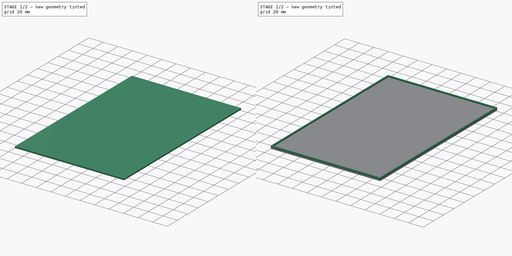
[diagram: build sequence overview — one tinted view per stage of 2, left to right]
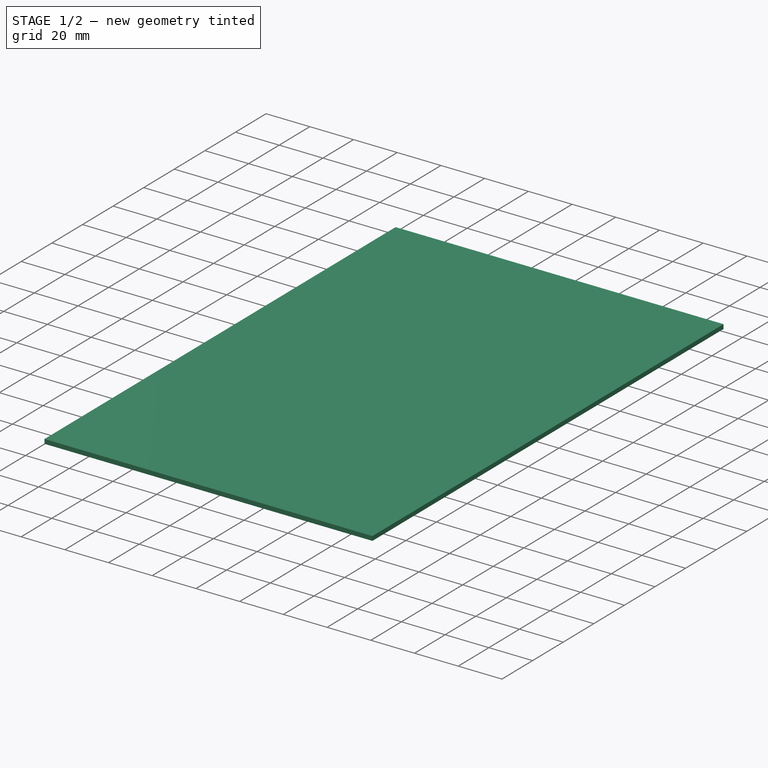
[diagram: stage 1 of 2 — iso view after this stage's code; geometry added in this stage tinted green]
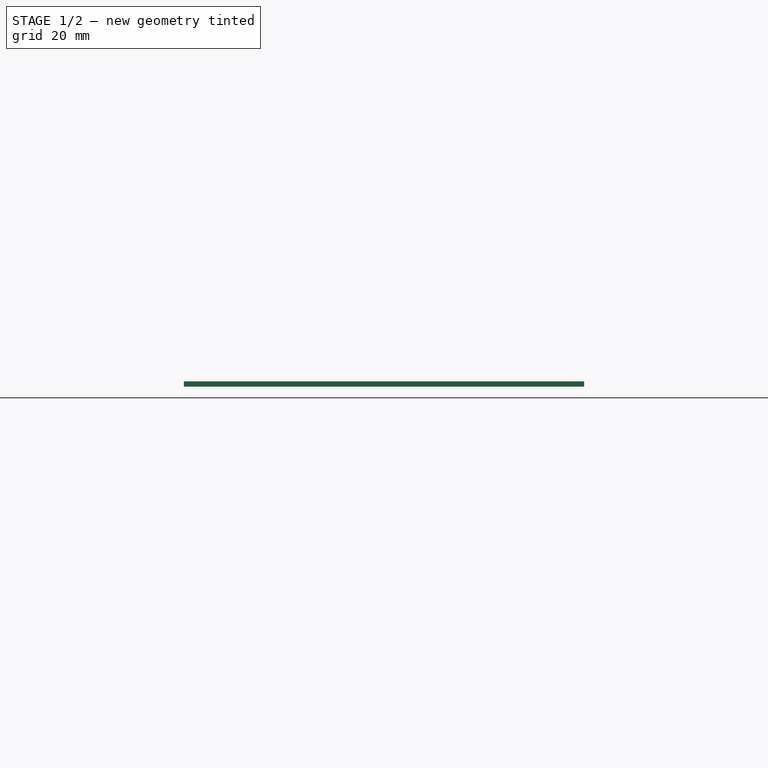
[diagram: stage 1 of 2 — front view after this stage's code; geometry added in this stage tinted green]
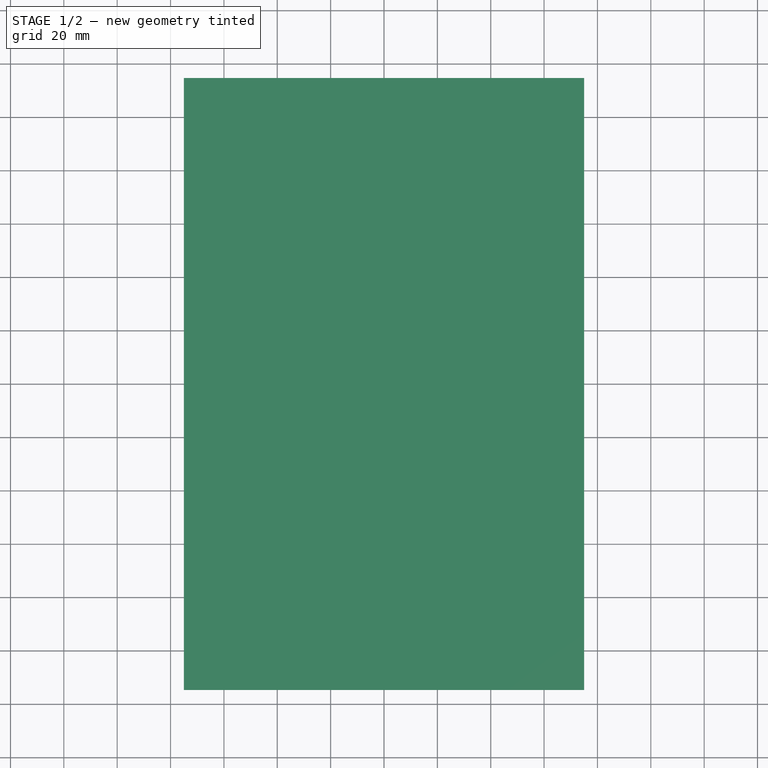
[diagram: stage 1 of 2 — top view after this stage's code; geometry added in this stage tinted green]
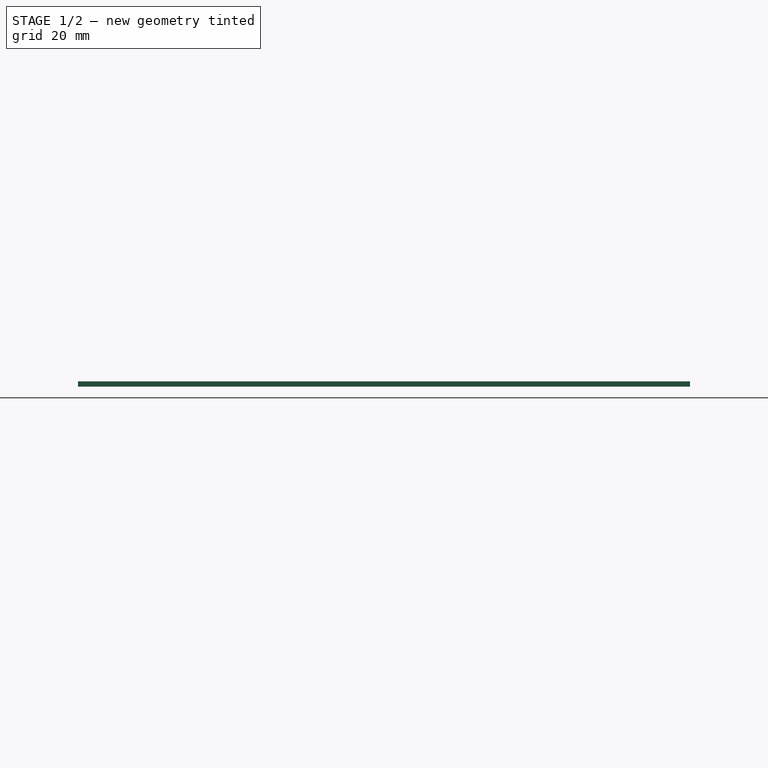
[diagram: stage 1 of 2 — right view after this stage's code; geometry added in this stage tinted green]
FCSTD DOCUMENT  (FreeCAD 0.20R29603 (Git))
Label: Bottom_Lid_Cloud_Chamber
License: All rights reserved
LicenseURL: http://en.wikipedia.org/wiki/All_rights_reserved
objects: Sketcher::SketchObject×2, PartDesign::Pad×2, PartDesign::Body×1
note: 7 computed .brp shape members not serialized (recipe doc carries the construction recipe); baked Part::Feature solids carry a one-line shape summary decoded from their .brp

FEATURE [Sketcher::SketchObject] Sketch
  FullyConstrained = false
  MapMode = 5
  Support = -> [XY_Plane]
  sketch-geometry (14):
    g0: LineSegment StartX=-73.025 StartY=112.713 StartZ=0 EndX=73.025 EndY=112.713 EndZ=0
    g1: LineSegment StartX=73.025 StartY=112.713 StartZ=0 EndX=73.025 EndY=-112.713 EndZ=0
    g2: LineSegment StartX=73.025 StartY=-112.713 StartZ=0 EndX=-73.025 EndY=-112.713 EndZ=0
    g3: LineSegment StartX=-73.025 StartY=-112.713 StartZ=0 EndX=-73.025 EndY=112.713 EndZ=0
    g4: LineSegment StartX=-75.025 StartY=114.713 StartZ=0 EndX=75.025 EndY=114.713 EndZ=0
    g5: LineSegment StartX=75.025 StartY=114.713 StartZ=0 EndX=75.025 EndY=-114.712 EndZ=0
    g6: LineSegment StartX=75.025 StartY=-114.712 StartZ=0 EndX=-75.025 EndY=-114.712 EndZ=0
    g7: LineSegment StartX=-75.025 StartY=-114.712 StartZ=0 EndX=-75.025 EndY=114.713 EndZ=0
    g8: LineSegment StartX=-75.025 StartY=114.713 StartZ=0 EndX=-73.025 EndY=114.713 EndZ=0
    g9: LineSegment StartX=-75.025 StartY=112.713 StartZ=0 EndX=-75.025 EndY=114.713 EndZ=0
    g10: LineSegment StartX=0 StartY=-112.712 StartZ=0 EndX=0 EndY=-114.712 EndZ=0
    g11: LineSegment StartX=73.025 StartY=0 StartZ=0 EndX=75.025 EndY=0 EndZ=0
    g12: LineSegment StartX=0 StartY=114.712 StartZ=0 EndX=0 EndY=112.712 EndZ=0
    g13: LineSegment StartX=-75.025 StartY=0 StartZ=0 EndX=-73.025 EndY=0 EndZ=0
  constraints (42):
    c: Coincident(g0,g1)
    c: Coincident(g1,g2)
    c: Coincident(g2,g3)
    c: Coincident(g3,g0)
    c: Horizontal(g2)
    c: Vertical(g3)
    c: Symmetric(g0,g0,g-2)
    c: Symmetric(g1,g0,g-1)
    c: DistanceY(g1,g1) = 225.425
    c: DistanceX(g0,g0) = 146.05
    c: Coincident(g4,g5)
    c: Coincident(g5,g6)
    c: Coincident(g6,g7)
    c: Coincident(g7,g4)
    c: Horizontal(g4)
    c: Horizontal(g6)
    c: Vertical(g5)
    c: Vertical(g7)
    c: Coincident(g9,g8)
    c: Horizontal(g8)
    c: Vertical(g9)
    c: Coincident(g8,g4)
    c: PointOnObject(g10,g2)
    c: PointOnObject(g10,g6)
    c: PointOnObject(g11,g1)
    c: PointOnObject(g11,g5)
    c: PointOnObject(g12,g4)
    c: PointOnObject(g12,g0)
    c: PointOnObject(g13,g7)
    c: PointOnObject(g13,g3)
    c: Horizontal(g13)
    c: Horizontal(g11)
    c: Horizontal(g11,g-1)
    c: Horizontal(g13,g-1)
    c: Equal(g13,g11)
    c: Vertical(g12)
    c: Vertical(g10)
    c: Vertical(g10,g-1)
    c: Vertical(g12,g10)
    c: Equal(g12,g10)
    c: Equal(g13,g10)
    c: DistanceY(g12,g12) = 2
FEATURE [PartDesign::Pad] Pad  label="Bottom"
  Direction = (0,0,1)
  Length = 2
  Length2 = 10
  Profile = -> Sketch
  ReferenceAxis = -> Sketch [N_Axis]
  Type = 0
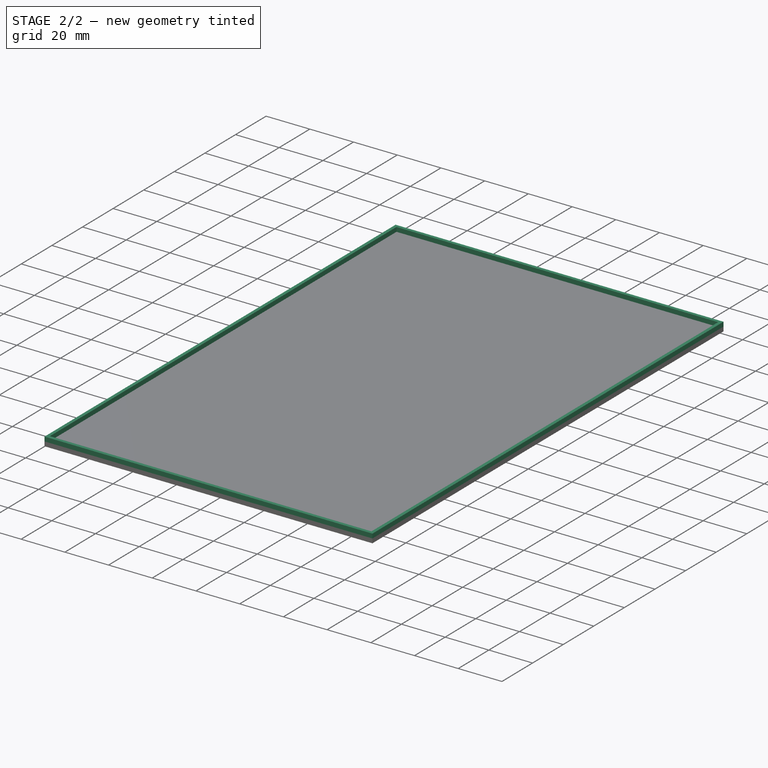
[diagram: stage 2 of 2 — iso view after this stage's code; geometry added in this stage tinted green]
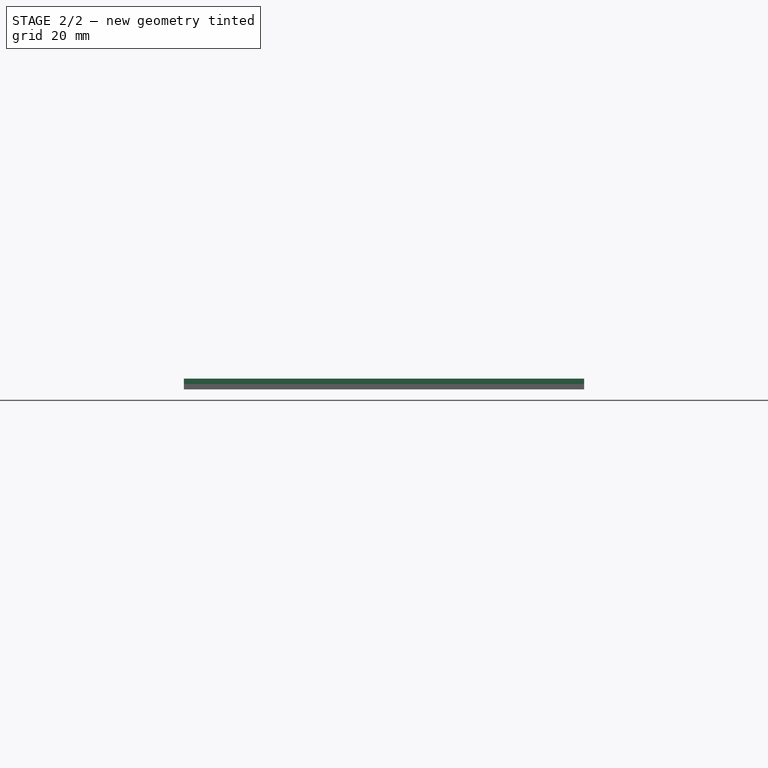
[diagram: stage 2 of 2 — front view after this stage's code; geometry added in this stage tinted green]
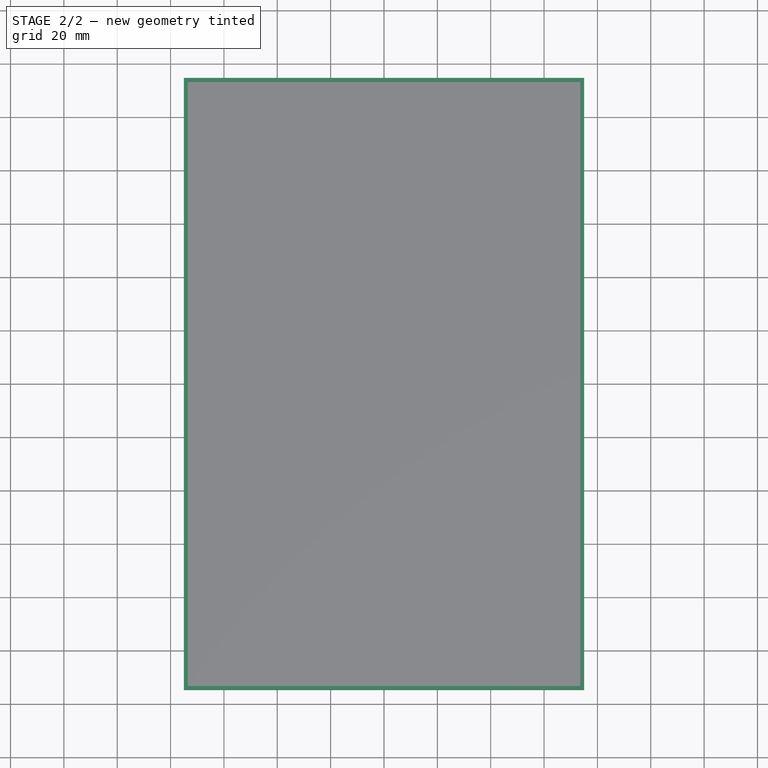
[diagram: stage 2 of 2 — top view after this stage's code; geometry added in this stage tinted green]
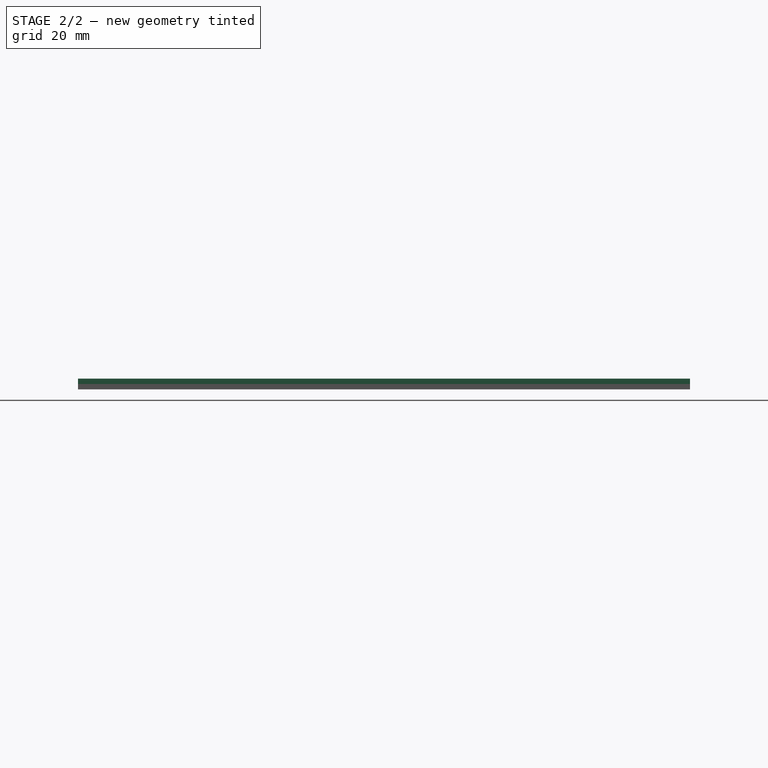
[diagram: stage 2 of 2 — right view after this stage's code; geometry added in this stage tinted green]
FEATURE [Sketcher::SketchObject] Sketch001
  ExternalGeometry = -> [Pad]
  FullyConstrained = false
  MapMode = 5
  Placement = pos=(0,0,2) rot=(0,0,1;0rad)
  Support = -> [Pad]
  sketch-geometry (22):
    g0: LineSegment StartX=-73.0798 StartY=112.767 StartZ=0 EndX=73.0798 EndY=112.767 EndZ=0
    g1: LineSegment StartX=73.0798 StartY=112.767 StartZ=0 EndX=73.0798 EndY=-112.767 EndZ=0
    g2: LineSegment StartX=73.0798 StartY=-112.767 StartZ=0 EndX=-73.0798 EndY=-112.767 EndZ=0
    g3: LineSegment StartX=-73.0798 StartY=-112.767 StartZ=0 EndX=-73.0798 EndY=112.767 EndZ=0
    g4: LineSegment StartX=-75.025 StartY=114.713 StartZ=0 EndX=75.025 EndY=114.713 EndZ=0
    g5: LineSegment StartX=75.025 StartY=114.713 StartZ=0 EndX=75.025 EndY=-114.713 EndZ=0
    g6: LineSegment StartX=75.025 StartY=-114.713 StartZ=0 EndX=-75.025 EndY=-114.713 EndZ=0
    g7: LineSegment StartX=-75.025 StartY=-114.713 StartZ=0 EndX=-75.025 EndY=114.713 EndZ=0
    g8: LineSegment StartX=-75.025 StartY=114.713 StartZ=0 EndX=-73.025 EndY=114.713 EndZ=0
    g9: LineSegment StartX=-75.025 StartY=112.713 StartZ=0 EndX=-75.025 EndY=114.713 EndZ=0
    g10: LineSegment StartX=0 StartY=-112.767 StartZ=0 EndX=0 EndY=-114.713 EndZ=0
    g11: LineSegment StartX=73.0798 StartY=0 StartZ=0 EndX=75.025 EndY=0 EndZ=0
    g12: LineSegment StartX=0 StartY=114.713 StartZ=0 EndX=0 EndY=112.767 EndZ=0
    g13: LineSegment StartX=-75.025 StartY=0 StartZ=0 EndX=-73.0798 EndY=0 EndZ=0
    g14: LineSegment StartX=-73.5798 StartY=113.267 StartZ=0 EndX=73.5798 EndY=113.267 EndZ=0
    g15: LineSegment StartX=73.5798 StartY=113.267 StartZ=0 EndX=73.5798 EndY=-113.267 EndZ=0
    g16: LineSegment StartX=73.5798 StartY=-113.267 StartZ=0 EndX=-73.5798 EndY=-113.267 EndZ=0
    g17: LineSegment StartX=-73.5798 StartY=-113.267 StartZ=0 EndX=-73.5798 EndY=113.267 EndZ=0
    g18: LineSegment StartX=1.29795 StartY=113.267 StartZ=0 EndX=1.29795 EndY=112.767 EndZ=0
    g19: LineSegment StartX=73.5798 StartY=92.5464 StartZ=0 EndX=73.0798 EndY=92.5464 EndZ=0
    g20: LineSegment StartX=-73.5798 StartY=110.827 StartZ=0 EndX=-73.0798 EndY=110.827 EndZ=0
    g21: LineSegment StartX=1.4115 StartY=-112.767 StartZ=0 EndX=1.4115 EndY=-113.267 EndZ=0
  constraints (68):
    c: Coincident(g0,g1)
    c: Coincident(g1,g2)
    c: Coincident(g2,g3)
    c: Coincident(g3,g0)
    c: Horizontal(g2)
    c: Vertical(g3)
    c: Symmetric(g0,g0,g-2)
    c: Symmetric(g1,g0,g-1)
    c: DistanceY(g1,g1) = 225.535
    c: DistanceX(g0,g0) = 146.16
    c: Coincident(g4,g5)
    c: Coincident(g5,g6)
    c: Coincident(g6,g7)
    c: Coincident(g7,g4)
    c: Horizontal(g4)
    c: Horizontal(g6)
    c: Vertical(g5)
    c: Vertical(g7)
    c: Coincident(g9,g8)
    c: Horizontal(g8)
    c: Vertical(g9)
    c: Coincident(g8,g4)
    c: PointOnObject(g10,g2)
    c: PointOnObject(g10,g6)
    c: PointOnObject(g11,g1)
    c: PointOnObject(g11,g5)
    c: PointOnObject(g12,g4)
    c: PointOnObject(g12,g0)
    c: PointOnObject(g13,g7)
    c: PointOnObject(g13,g3)
    c: Horizontal(g13)
    c: Horizontal(g11)
    c: Horizontal(g11,g-1)
    c: Horizontal(g13,g-1)
    c: Equal(g13,g11)
    c: Vertical(g12)
    c: Vertical(g10)
    c: Vertical(g10,g-1)
    c: Vertical(g12,g10)
    c: Equal(g12,g10)
    c: Equal(g13,g10)
    c: DistanceY(g12,g12) = 1.94516
    c: Coincident(g14,g15)
    c: Coincident(g15,g16)
    c: Coincident(g16,g17)
    c: Coincident(g17,g14)
    c: Horizontal(g14)
    c: Horizontal(g16)
    c: Vertical(g15)
    c: Vertical(g17)
    c: PointOnObject(g18,g14)
    c: PointOnObject(g18,g0)
    c: Vertical(g18)
    c: PointOnObject(g19,g15)
    c: PointOnObject(g19,g1)
    c: Horizontal(g19)
    c: PointOnObject(g20,g17)
    c: PointOnObject(g20,g3)
    c: Horizontal(g20)
    c: PointOnObject(g21,g2)
    c: PointOnObject(g21,g16)
    c: Vertical(g21)
    c: Equal(g21,g20)
    c: Equal(g20,g18)
    c: Equal(g18,g19)
    c: Coincident(g4,g-4)
    c: DistanceY(g18,g18) = 0.5
    c: Block(g14)
FEATURE [PartDesign::Pad] Pad001
  BaseFeature = -> Pad
  Direction = (0,0,1)
  Length = 2
  Length2 = 10
  Profile = -> Sketch001
  ReferenceAxis = -> Sketch001 [N_Axis]
  Type = 0
FEATURE [PartDesign::Body] Body
  Group = -> [Sketch,Pad,Sketch001,Pad001]
  Origin = -> Origin
  Tip = -> Pad001
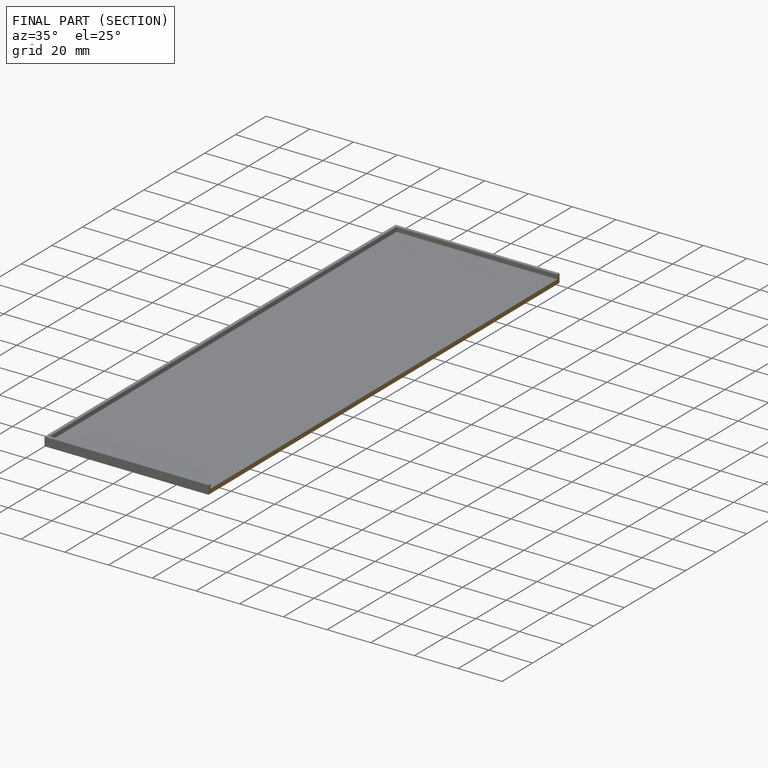
[diagram: finished part — half-section view (interior)]
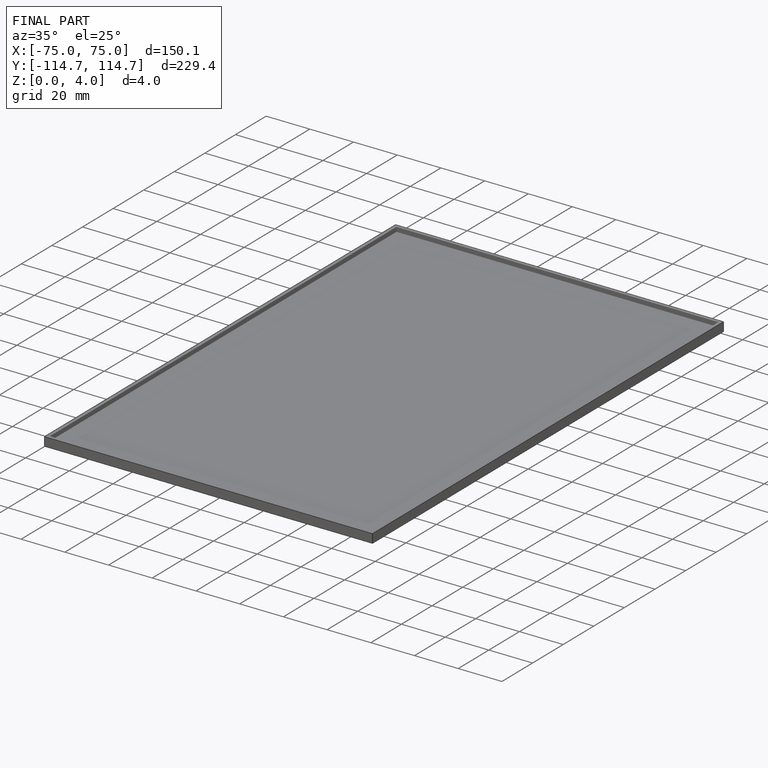
[diagram: finished part — iso view with bounding-box wireframe]
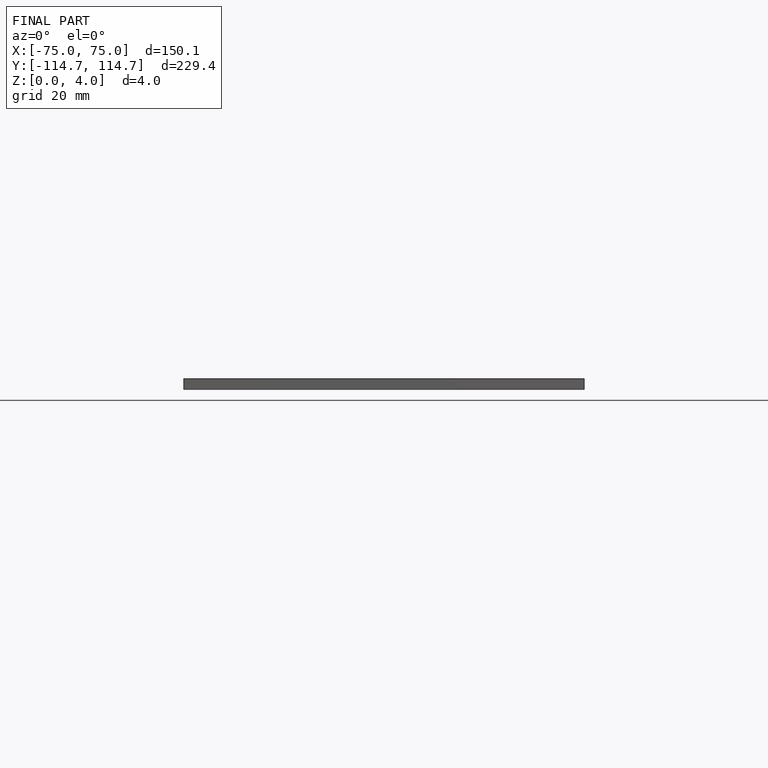
[diagram: finished part — front view with bounding-box wireframe]
